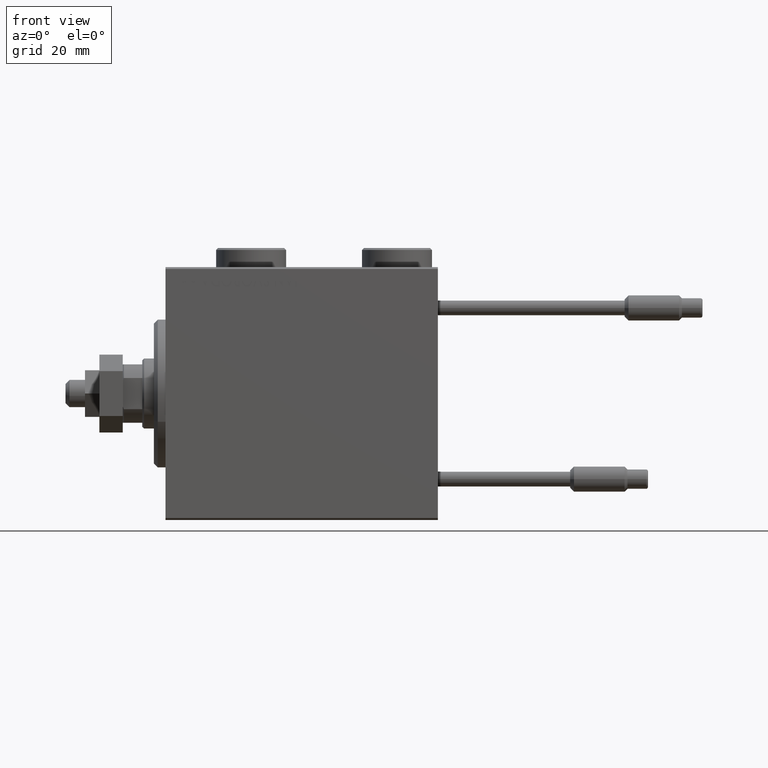
[diagram: clean part render]
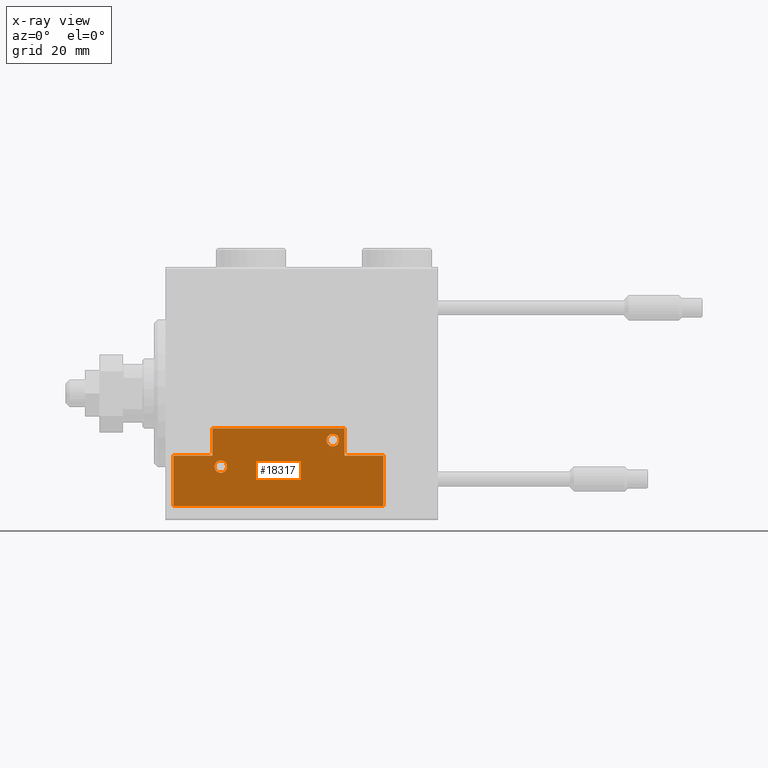
[diagram: x-ray — body ghosted, one internal face saturated and labeled with its STEP entity id]
A machine part, front view, then the same camera in x-ray: the body is ghosted and one INTERNAL B-rep face — a face not visible from any outside direction — is saturated and labeled: STEP entity #18317.
In plain terms, the highlighted planar face has unit normal (-0, 1, -0).
Its self-contained STEP definition (entity closure, byte-faithful):
#530 = AXIS2_PLACEMENT_3D ( 'NONE', #32683, #40837, #4686 ) ;
#1500 = CARTESIAN_POINT ( 'NONE',  ( 27.00000000000006395, 20.00000000000001776, 0.000000000000000000 ) ) ;
#1886 = ORIENTED_EDGE ( 'NONE', *, *, #46970, .F. ) ;
#2022 = LINE ( 'NONE', #49211, #6836 ) ;
#2252 = DIRECTION ( 'NONE',  ( 1.000000000000000000, 0.000000000000000000, 0.000000000000000000 ) ) ;
#3494 = VERTEX_POINT ( 'NONE', #19361 ) ;
#4380 = CIRCLE ( 'NONE', #21087, 1.600000000000000755 ) ;
#4387 = ORIENTED_EDGE ( 'NONE', *, *, #40891, .F. ) ;
#4686 = DIRECTION ( 'NONE',  ( 1.000000000000000000, 0.000000000000000000, 0.000000000000000000 ) ) ;
#5097 = VERTEX_POINT ( 'NONE', #23129 ) ;
#5162 = CARTESIAN_POINT ( 'NONE',  ( -16.99999999999999289, 7.000000000000003553, 0.000000000000000000 ) ) ;
#5789 = EDGE_CURVE ( 'NONE', #36960, #37843, #4380, .T. ) ;
#6726 = AXIS2_PLACEMENT_3D ( 'NONE', #46024, #30024, #2252 ) ;
#6836 = VECTOR ( 'NONE', #20908, 1000.000000000000000 ) ;
#6933 = ORIENTED_EDGE ( 'NONE', *, *, #15984, .F. ) ;
#7308 = CARTESIAN_POINT ( 'NONE',  ( -16.99999999999999289, 3.252606517456513302E-15, 0.000000000000000000 ) ) ;
#7527 = AXIS2_PLACEMENT_3D ( 'NONE', #37169, #36898, #20931 ) ;
#7593 = CIRCLE ( 'NONE', #6726, 1.600000000000000755 ) ;
#8394 = CIRCLE ( 'NONE', #38517, 1.600000000000000755 ) ;
#9101 = LINE ( 'NONE', #5162, #22181 ) ;
#9138 = FACE_OUTER_BOUND ( 'NONE', #18086, .T. ) ;
#9780 = CARTESIAN_POINT ( 'NONE',  ( 27.00000000000006395, 7.000000000000007994, 0.000000000000000000 ) ) ;
#10323 = ORIENTED_EDGE ( 'NONE', *, *, #48743, .F. ) ;
#10760 = VECTOR ( 'NONE', #30758, 1000.000000000000000 ) ;
#11940 = EDGE_CURVE ( 'NONE', #42364, #18059, #9101, .T. ) ;
#12101 = CARTESIAN_POINT ( 'NONE',  ( -26.99999999999994671, 7.000000000000005329, 0.000000000000000000 ) ) ;
#13549 = ORIENTED_EDGE ( 'NONE', *, *, #35640, .T. ) ;
#15984 = EDGE_CURVE ( 'NONE', #18520, #32746, #47002, .T. ) ;
#16199 = FACE_BOUND ( 'NONE', #16323, .T. ) ;
#16323 = EDGE_LOOP ( 'NONE', ( #13549, #50461 ) ) ;
#17103 = ORIENTED_EDGE ( 'NONE', *, *, #5789, .T. ) ;
#18059 = VERTEX_POINT ( 'NONE', #41671 ) ;
#18086 = EDGE_LOOP ( 'NONE', ( #44011, #25908, #1886, #46146, #10323, #4387, #6933, #44717 ) ) ;
#18093 = LINE ( 'NONE', #41955, #47879 ) ;
#18317 = ADVANCED_FACE ( 'NONE', ( #28240, #16199, #9138 ), #36871, .F. ) ;
#18520 = VERTEX_POINT ( 'NONE', #1500 ) ;
#18965 = EDGE_LOOP ( 'NONE', ( #17103, #31753 ) ) ;
#19361 = CARTESIAN_POINT ( 'NONE',  ( 12.39999999999999858, 3.000000000000002665, 0.000000000000000000 ) ) ;
#19450 = EDGE_CURVE ( 'NONE', #36248, #47728, #46303, .T. ) ;
#20908 = DIRECTION ( 'NONE',  ( 9.912705577010318647E-16, 1.000000000000000000, 0.000000000000000000 ) ) ;
#20931 = DIRECTION ( 'NONE',  ( 1.000000000000000000, 0.000000000000000000, 0.000000000000000000 ) ) ;
#21087 = AXIS2_PLACEMENT_3D ( 'NONE', #37375, #33181, #21402 ) ;
#21402 = DIRECTION ( 'NONE',  ( 1.000000000000000000, 0.000000000000000000, 0.000000000000000000 ) ) ;
#22181 = VECTOR ( 'NONE', #36572, 1000.000000000000000 ) ;
#23129 = CARTESIAN_POINT ( 'NONE',  ( -26.99999999999994671, 7.000000000000005329, 0.000000000000000000 ) ) ;
#24179 = DIRECTION ( 'NONE',  ( 0.000000000000000000, 0.000000000000000000, 1.000000000000000000 ) ) ;
#25215 = VECTOR ( 'NONE', #26455, 1000.000000000000000 ) ;
#25289 = CARTESIAN_POINT ( 'NONE',  ( -13.19999999999994778, 9.800000000000004263, 0.000000000000000000 ) ) ;
#25908 = ORIENTED_EDGE ( 'NONE', *, *, #38128, .F. ) ;
#26400 = CARTESIAN_POINT ( 'NONE',  ( 17.00000000000000000, 7.000000000000009770, 0.000000000000000000 ) ) ;
#26455 = DIRECTION ( 'NONE',  ( 1.000000000000000000, 0.000000000000000000, 0.000000000000000000 ) ) ;
#28240 = FACE_BOUND ( 'NONE', #18965, .T. ) ;
#29749 = CARTESIAN_POINT ( 'NONE',  ( -26.99999999999993605, 20.00000000000002132, 0.000000000000000000 ) ) ;
#29752 = VECTOR ( 'NONE', #30748, 1000.000000000000000 ) ;
#29837 = EDGE_CURVE ( 'NONE', #37843, #36960, #32603, .T. ) ;
#30024 = DIRECTION ( 'NONE',  ( 0.000000000000000000, 0.000000000000000000, 1.000000000000000000 ) ) ;
#30748 = DIRECTION ( 'NONE',  ( -1.000000000000000000, 6.424901762877062263E-17, 0.000000000000000000 ) ) ;
#30758 = DIRECTION ( 'NONE',  ( -8.006416042969869188E-16, -1.000000000000000000, 0.000000000000000000 ) ) ;
#31488 = EDGE_CURVE ( 'NONE', #3494, #39913, #8394, .T. ) ;
#31753 = ORIENTED_EDGE ( 'NONE', *, *, #29837, .T. ) ;
#31919 = VECTOR ( 'NONE', #38372, 1000.000000000000000 ) ;
#32603 = CIRCLE ( 'NONE', #7527, 1.600000000000000755 ) ;
#32683 = CARTESIAN_POINT ( 'NONE',  ( 0.000000000000000000, 0.000000000000000000, 0.000000000000000000 ) ) ;
#32746 = VERTEX_POINT ( 'NONE', #51119 ) ;
#32814 = CARTESIAN_POINT ( 'NONE',  ( 16.99999999999999289, 3.252606517456513302E-15, 0.000000000000000000 ) ) ;
#33181 = DIRECTION ( 'NONE',  ( 0.000000000000000000, 0.000000000000000000, 1.000000000000000000 ) ) ;
#34486 = DIRECTION ( 'NONE',  ( 1.000000000000000000, -1.734723475976796001E-16, 0.000000000000000000 ) ) ;
#34701 = LINE ( 'NONE', #29749, #10760 ) ;
#35640 = EDGE_CURVE ( 'NONE', #39913, #3494, #7593, .T. ) ;
#35954 = DIRECTION ( 'NONE',  ( 1.000000000000000000, 0.000000000000000000, 0.000000000000000000 ) ) ;
#36248 = VERTEX_POINT ( 'NONE', #41727 ) ;
#36572 = DIRECTION ( 'NONE',  ( 0.000000000000000000, -1.000000000000000000, 0.000000000000000000 ) ) ;
#36871 = PLANE ( 'NONE',  #530 ) ;
#36898 = DIRECTION ( 'NONE',  ( 0.000000000000000000, 0.000000000000000000, 1.000000000000000000 ) ) ;
#36960 = VERTEX_POINT ( 'NONE', #25289 ) ;
#37169 = CARTESIAN_POINT ( 'NONE',  ( -14.79999999999994920, 9.800000000000004263, 0.000000000000000000 ) ) ;
#37277 = VERTEX_POINT ( 'NONE', #32814 ) ;
#37375 = CARTESIAN_POINT ( 'NONE',  ( -14.79999999999994920, 9.800000000000004263, 0.000000000000000000 ) ) ;
#37843 = VERTEX_POINT ( 'NONE', #39531 ) ;
#38128 = EDGE_CURVE ( 'NONE', #37277, #36248, #2022, .T. ) ;
#38365 = CARTESIAN_POINT ( 'NONE',  ( 27.00000000000006395, 20.00000000000001776, 0.000000000000000000 ) ) ;
#38372 = DIRECTION ( 'NONE',  ( 1.000000000000000000, -1.734723475976815230E-16, 0.000000000000000000 ) ) ;
#38517 = AXIS2_PLACEMENT_3D ( 'NONE', #40172, #24179, #35954 ) ;
#39531 = CARTESIAN_POINT ( 'NONE',  ( -16.39999999999994884, 9.800000000000004263, 0.000000000000000000 ) ) ;
#39913 = VERTEX_POINT ( 'NONE', #47989 ) ;
#40172 = CARTESIAN_POINT ( 'NONE',  ( 13.99999999999999822, 3.000000000000002665, 0.000000000000000000 ) ) ;
#40673 = CARTESIAN_POINT ( 'NONE',  ( -16.99999999999999289, 7.000000000000003553, 0.000000000000000000 ) ) ;
#40837 = DIRECTION ( 'NONE',  ( -0.000000000000000000, 0.000000000000000000, 1.000000000000000000 ) ) ;
#40891 = EDGE_CURVE ( 'NONE', #32746, #5097, #34701, .T. ) ;
#41671 = CARTESIAN_POINT ( 'NONE',  ( -16.99999999999999289, 3.252606517456513302E-15, 0.000000000000000000 ) ) ;
#41727 = CARTESIAN_POINT ( 'NONE',  ( 17.00000000000000000, 7.000000000000009770, 0.000000000000000000 ) ) ;
#41955 = CARTESIAN_POINT ( 'NONE',  ( 27.00000000000006395, 7.000000000000007994, 0.000000000000000000 ) ) ;
#42364 = VERTEX_POINT ( 'NONE', #40673 ) ;
#43210 = LINE ( 'NONE', #7308, #25215 ) ;
#44011 = ORIENTED_EDGE ( 'NONE', *, *, #19450, .F. ) ;
#44717 = ORIENTED_EDGE ( 'NONE', *, *, #49063, .F. ) ;
#46024 = CARTESIAN_POINT ( 'NONE',  ( 13.99999999999999822, 3.000000000000002665, 0.000000000000000000 ) ) ;
#46146 = ORIENTED_EDGE ( 'NONE', *, *, #11940, .F. ) ;
#46303 = LINE ( 'NONE', #26400, #48275 ) ;
#46970 = EDGE_CURVE ( 'NONE', #18059, #37277, #43210, .T. ) ;
#47002 = LINE ( 'NONE', #38365, #29752 ) ;
#47473 = LINE ( 'NONE', #12101, #31919 ) ;
#47728 = VERTEX_POINT ( 'NONE', #9780 ) ;
#47879 = VECTOR ( 'NONE', #50054, 1000.000000000000000 ) ;
#47989 = CARTESIAN_POINT ( 'NONE',  ( 15.59999999999999964, 3.000000000000002665, 0.000000000000000000 ) ) ;
#48275 = VECTOR ( 'NONE', #34486, 1000.000000000000000 ) ;
#48743 = EDGE_CURVE ( 'NONE', #5097, #42364, #47473, .T. ) ;
#49063 = EDGE_CURVE ( 'NONE', #47728, #18520, #18093, .T. ) ;
#49211 = CARTESIAN_POINT ( 'NONE',  ( 16.99999999999999289, 3.252606517456513302E-15, 0.000000000000000000 ) ) ;
#50054 = DIRECTION ( 'NONE',  ( 0.000000000000000000, 1.000000000000000000, 0.000000000000000000 ) ) ;
#50461 = ORIENTED_EDGE ( 'NONE', *, *, #31488, .T. ) ;
#51119 = CARTESIAN_POINT ( 'NONE',  ( -26.99999999999993605, 20.00000000000002132, 0.000000000000000000 ) ) ;